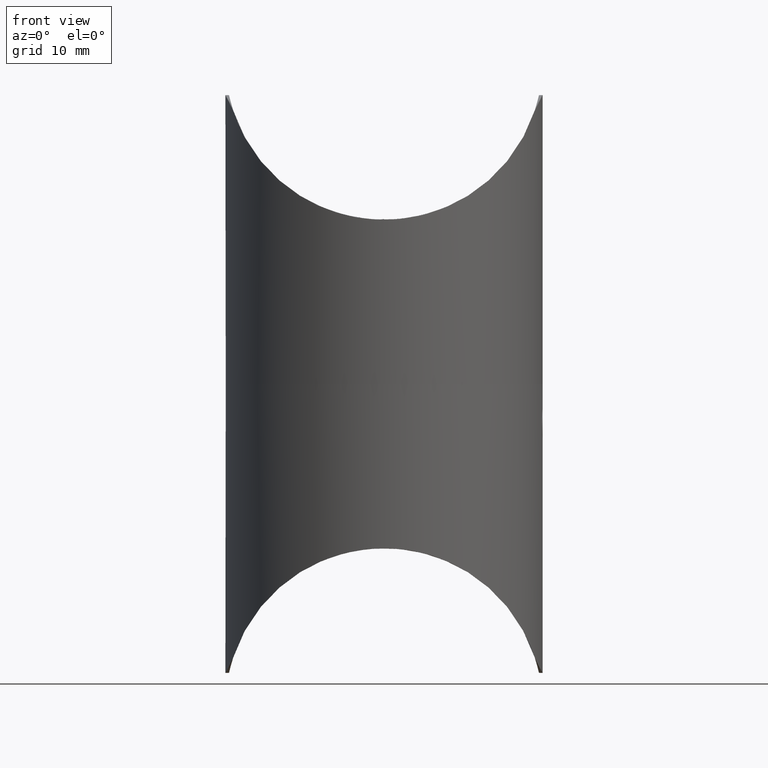
[diagram: clean part render]
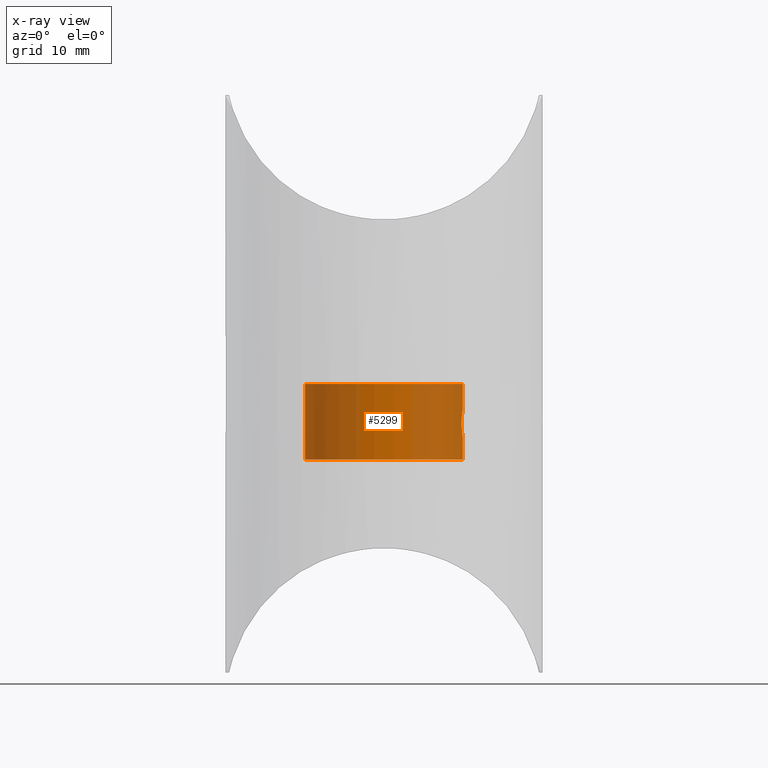
[diagram: x-ray — body ghosted, one internal face saturated and labeled with its STEP entity id]
A machine part, front view, then the same camera in x-ray: the body is ghosted and one INTERNAL B-rep face — a face not visible from any outside direction — is saturated and labeled: STEP entity #5299.
In plain terms, the highlighted cylindrical surface (bore or boss wall) has radius 12 mm, axis along (0, 0, 1).
Its self-contained STEP definition (entity closure, byte-faithful):
#18 = CARTESIAN_POINT ( 'NONE',  ( 11.85938010180749380, 1.834771168086873683, 4.942461510080907949 ) ) ;
#67 = CARTESIAN_POINT ( 'NONE',  ( 11.95583868080447587, -1.059235442716481179, 4.166198353229381368 ) ) ;
#118 = CARTESIAN_POINT ( 'NONE',  ( 11.82504449829075632, 2.044408044357564069, 5.447579286169230706 ) ) ;
#644 = FACE_BOUND ( 'NONE', #2125, .T. ) ;
#1020 = CARTESIAN_POINT ( 'NONE',  ( 11.98828488230609857, 0.5470151797888748169, 8.032161743065062254 ) ) ;
#1109 = CARTESIAN_POINT ( 'NONE',  ( 11.85098633725269046, -1.886001232725555088, 6.933809241330334494 ) ) ;
#1159 = CARTESIAN_POINT ( 'NONE',  ( 11.99755274049298670, 0.2773594515023529161, 8.086139662524781002 ) ) ;
#1202 = CARTESIAN_POINT ( 'NONE',  ( 11.95409979737489259, 1.054760392010267944, 7.821032775836723516 ) ) ;
#1380 = ORIENTED_EDGE ( 'NONE', *, *, #12576, .T. ) ;
#1444 = EDGE_LOOP ( 'NONE', ( #8877 ) ) ;
#2073 = VERTEX_POINT ( 'NONE', #10928 ) ;
#2112 = CARTESIAN_POINT ( 'NONE',  ( 11.91979888924957720, 1.388480957413880779, 4.418606647993171599 ) ) ;
#2125 = EDGE_LOOP ( 'NONE', ( #1380 ) ) ;
#2163 = CARTESIAN_POINT ( 'NONE',  ( 11.81722603926612081, -2.086600151662308722, 5.726333217600926062 ) ) ;
#2214 = CARTESIAN_POINT ( 'NONE',  ( 11.99004954306559512, -0.5503883424061277729, 8.044983021353937502 ) ) ;
#2261 = CARTESIAN_POINT ( 'NONE',  ( 12.00000000000000355, -0.1390225640938832774, 3.900000000000003908 ) ) ;
#2314 = CARTESIAN_POINT ( 'NONE',  ( 12.00000000000000178, -6.911788849595090767E-16, 3.900000000000002576 ) ) ;
#3001 = CARTESIAN_POINT ( 'NONE',  ( 12.00000000000000000, 0.1390225640938818896, 3.900000000000001688 ) ) ;
#3236 = CARTESIAN_POINT ( 'NONE',  ( 11.82667835274314960, -2.032344071998362534, 6.546192681212250619 ) ) ;
#3278 = CARTESIAN_POINT ( 'NONE',  ( 11.93172128118156827, -1.293009970936235709, 4.322867531882433667 ) ) ;
#3316 = CARTESIAN_POINT ( 'NONE',  ( 0.000000000000000000, 0.000000000000000000, 11.49999999999997868 ) ) ;
#3326 = CARTESIAN_POINT ( 'NONE',  ( 11.83365049448734219, -1.991881971882786928, 6.679269136001765084 ) ) ;
#3381 = CARTESIAN_POINT ( 'NONE',  ( 11.91990506011928197, 1.387644347599304551, 7.582259098887409898 ) ) ;
#3427 = CARTESIAN_POINT ( 'NONE',  ( 11.88363963771688958, 1.678406588973372138, 4.708609844555017965 ) ) ;
#3590 = CARTESIAN_POINT ( 'NONE',  ( 0.000000000000000000, 0.000000000000000000, 0.000000000000000000 ) ) ;
#4169 = VERTEX_POINT ( 'NONE', #6566 ) ;
#4306 = CARTESIAN_POINT ( 'NONE',  ( 11.96442116355707874, 0.9321221279122053893, 4.113181683491672125 ) ) ;
#4348 = CARTESIAN_POINT ( 'NONE',  ( 11.88346114303485557, 1.670101859341211137, 7.280403112519468145 ) ) ;
#4403 = CARTESIAN_POINT ( 'NONE',  ( 11.81726473798053867, 2.086383612213994265, 6.275473674643928135 ) ) ;
#4451 = CARTESIAN_POINT ( 'NONE',  ( 11.99999049797130013, 0.1380107357596326023, 8.099945702689030469 ) ) ;
#4497 = CARTESIAN_POINT ( 'NONE',  ( 11.89586917460357718, -1.580451568311319166, 7.389571388286498177 ) ) ;
#4583 = EDGE_CURVE ( 'NONE', #8304, #8304, #5818, .T. ) ;
#5186 = AXIS2_PLACEMENT_3D ( 'NONE', #3590, #13436, #6874 ) ;
#5299 = ADVANCED_FACE ( 'NONE', ( #644, #8922, #10108 ), #9605, .F. ) ;
#5302 = AXIS2_PLACEMENT_3D ( 'NONE', #5568, #13238, #6676 ) ;
#5515 = CARTESIAN_POINT ( 'NONE',  ( 11.93187980565470241, 1.281899275903433111, 7.668955991529891492 ) ) ;
#5552 = CARTESIAN_POINT ( 'NONE',  ( 11.93197218499959789, -1.281120951505778205, 7.669636394085021180 ) ) ;
#5568 = CARTESIAN_POINT ( 'NONE',  ( 0.000000000000000000, 0.000000000000000000, 11.49999999999997868 ) ) ;
#5608 = CARTESIAN_POINT ( 'NONE',  ( 11.99758543647637765, -0.2763240157166890199, 3.913670562736315972 ) ) ;
#5653 = CARTESIAN_POINT ( 'NONE',  ( 11.88360518176614811, -1.669086411898565103, 7.281751924229743267 ) ) ;
#5818 = CIRCLE ( 'NONE', #5186, 12.00000000000000178 ) ;
#5835 = EDGE_LOOP ( 'NONE', ( #9042 ) ) ;
#6421 = CARTESIAN_POINT ( 'NONE',  ( 11.99758661110946711, 0.2756691184617626744, 3.913668504053622321 ) ) ;
#6566 = CARTESIAN_POINT ( 'NONE',  ( 12.00000000000000178, -7.347880794884120722E-16, 3.900000000000002576 ) ) ;
#6608 = CARTESIAN_POINT ( 'NONE',  ( 11.96460655519219962, -0.9296471495185132383, 7.887982229435097636 ) ) ;
#6663 = CARTESIAN_POINT ( 'NONE',  ( 11.89558327999342779, -1.582580269031047537, 4.612880063868924907 ) ) ;
#6676 = DIRECTION ( 'NONE',  ( -1.000000000000000000, 0.000000000000000000, 0.000000000000000000 ) ) ;
#6711 = CARTESIAN_POINT ( 'NONE',  ( 11.81484956178276668, 2.099840436459506243, 5.724290231699679765 ) ) ;
#6874 = DIRECTION ( 'NONE',  ( -1.000000000000000000, 0.000000000000000000, 0.000000000000000000 ) ) ;
#7298 = CIRCLE ( 'NONE', #5302, 12.00000000000000178 ) ;
#7561 = CARTESIAN_POINT ( 'NONE',  ( 12.00000000000000178, -6.911788849595090767E-16, 3.900000000000002576 ) ) ;
#7604 = CARTESIAN_POINT ( 'NONE',  ( 11.85071665137476593, -1.887684512886479427, 5.069660372659860137 ) ) ;
#7708 = CARTESIAN_POINT ( 'NONE',  ( 11.86122223683398680, -1.821353511792390023, 7.054233764746984825 ) ) ;
#7752 = CARTESIAN_POINT ( 'NONE',  ( 11.98136072408851582, -0.6804482128722008083, 4.008595400150841037 ) ) ;
#7804 = CARTESIAN_POINT ( 'NONE',  ( 11.86112961740384897, 1.821947627606114839, 7.053175765665433694 ) ) ;
#8304 = VERTEX_POINT ( 'NONE', #12175 ) ;
#8510 = CARTESIAN_POINT ( 'NONE',  ( 11.93201236731082204, 1.280706470412639186, 4.330089670438455940 ) ) ;
#8571 = EDGE_CURVE ( 'NONE', #2073, #2073, #7298, .T. ) ;
#8794 = CARTESIAN_POINT ( 'NONE',  ( 11.81484057874540028, -2.099890975967358742, 6.140380114349063945 ) ) ;
#8832 = CARTESIAN_POINT ( 'NONE',  ( 11.98151228912667499, 0.6779080366305344496, 7.992320321767040880 ) ) ;
#8877 = ORIENTED_EDGE ( 'NONE', *, *, #4583, .T. ) ;
#8884 = CARTESIAN_POINT ( 'NONE',  ( 11.98826971918961171, -0.5475403247006493945, 3.967925917865812835 ) ) ;
#8922 = FACE_OUTER_BOUND ( 'NONE', #5835, .T. ) ;
#8975 = DIRECTION ( 'NONE',  ( 0.000000000000000000, 0.000000000000000000, -1.000000000000000000 ) ) ;
#9042 = ORIENTED_EDGE ( 'NONE', *, *, #8571, .F. ) ;
#9300 = B_SPLINE_CURVE_WITH_KNOTS ( 'NONE', 3,
 ( #7561, #3001, #6421, #10871, #14094, #4306, #14186, #8510, #2112, #3427, #18, #118, #6711, #13177, #4403, #12119, #12062, #10920, #7804, #4348, #13265, #3381, #5515, #1202, #9878, #8832, #1020, #1159, #4451, #10968, #2214, #6608, #11058, #5552, #9929, #4497, #5653, #7708, #1109, #3326, #3236, #11011, #8794, #13324, #2163, #9830, #12166, #7604, #12018, #13223, #6663, #3278, #67, #7752, #8884, #5608, #2261, #2314 ),
 .UNSPECIFIED., .T., .F.,
 ( 4, 2, 2, 2, 2, 2, 2, 2, 2, 2, 2, 2, 2, 2, 2, 2, 2, 2, 2, 2, 2, 2, 2, 2, 2, 2, 2, 2, 4 ),
 ( 0.000000000000000000, 0.0004110877741431817720, 0.0008221755482863635439, 0.001233263322429544936, 0.001644351096572726437, 0.002466526644859088572, 0.003288702193145450706, 0.003699789967288633075, 0.004110877741431815009, 0.004521965515574998679, 0.004933053289718180613, 0.005344141063861363415, 0.005755228838004543615, 0.006166316612147725550, 0.006577404386290905750, 0.007399579934577268751, 0.007810667708720450686, 0.008221755482863631753, 0.008632843257006814555, 0.009043931031149997357, 0.009455018805293178424, 0.009866106579436359492, 0.01027719435357954229, 0.01068828212772272336, 0.01109936990186590443, 0.01151045767600908723, 0.01233263322429544936, 0.01274372099843863043, 0.01315480877258181150 ),
 .UNSPECIFIED. ) ;
#9605 = CYLINDRICAL_SURFACE ( 'NONE', #10068, 12.00000000000000178 ) ;
#9830 = CARTESIAN_POINT ( 'NONE',  ( 11.82651144408109545, -2.033312204027048153, 5.457381181988221641 ) ) ;
#9878 = CARTESIAN_POINT ( 'NONE',  ( 11.96444018425253120, 0.9318621776127347101, 7.886937320789703776 ) ) ;
#9929 = CARTESIAN_POINT ( 'NONE',  ( 11.92000811184873044, -1.386700109079761711, 7.582971449647893714 ) ) ;
#10068 = AXIS2_PLACEMENT_3D ( 'NONE', #3316, #8975, #12108 ) ;
#10108 = FACE_OUTER_BOUND ( 'NONE', #1444, .T. ) ;
#10871 = CARTESIAN_POINT ( 'NONE',  ( 11.98839789607710493, 0.5444206455312672333, 3.967174691575624301 ) ) ;
#10920 = CARTESIAN_POINT ( 'NONE',  ( 11.85073445340301035, 1.887576422289822364, 6.930609710695868841 ) ) ;
#10928 = CARTESIAN_POINT ( 'NONE',  ( -12.00000000000000178, 0.000000000000000000, 11.49999999999997868 ) ) ;
#10968 = CARTESIAN_POINT ( 'NONE',  ( 12.00001891821713151, -0.2735354104619597826, 8.100108104106022111 ) ) ;
#11011 = CARTESIAN_POINT ( 'NONE',  ( 11.81732158297307755, -2.086061813760281325, 6.277659829950041015 ) ) ;
#11058 = CARTESIAN_POINT ( 'NONE',  ( 11.95433794049143472, -1.052157554987843913, 7.822613799004682456 ) ) ;
#12018 = CARTESIAN_POINT ( 'NONE',  ( 11.86092440456027930, -1.823295257947106673, 4.949067841735971029 ) ) ;
#12062 = CARTESIAN_POINT ( 'NONE',  ( 11.83346516143669369, 1.992976193566194709, 6.676036297475440584 ) ) ;
#12108 = DIRECTION ( 'NONE',  ( -1.000000000000000000, 0.000000000000000000, 0.000000000000000000 ) ) ;
#12119 = CARTESIAN_POINT ( 'NONE',  ( 11.82661786571889451, 2.032695826505255710, 6.545004586811022484 ) ) ;
#12166 = CARTESIAN_POINT ( 'NONE',  ( 11.83348956523700757, -1.992827810120421317, 5.323596302788414114 ) ) ;
#12175 = CARTESIAN_POINT ( 'NONE',  ( -12.00000000000000178, 0.000000000000000000, 0.000000000000000000 ) ) ;
#12576 = EDGE_CURVE ( 'NONE', #4169, #4169, #9300, .T. ) ;
#13177 = CARTESIAN_POINT ( 'NONE',  ( 11.81480711405181161, 2.100079251906457056, 6.136027825990322704 ) ) ;
#13223 = CARTESIAN_POINT ( 'NONE',  ( 11.88335354840744174, -1.670880537889620321, 4.720538305759959918 ) ) ;
#13238 = DIRECTION ( 'NONE',  ( 0.000000000000000000, 0.000000000000000000, -1.000000000000000000 ) ) ;
#13265 = CARTESIAN_POINT ( 'NONE',  ( 11.89553171067913517, 1.583040996913483323, 7.386752282683345605 ) ) ;
#13324 = CARTESIAN_POINT ( 'NONE',  ( 11.81480205006285544, -2.100107742461963412, 5.862900920845088848 ) ) ;
#13436 = DIRECTION ( 'NONE',  ( 0.000000000000000000, 0.000000000000000000, -1.000000000000000000 ) ) ;
#14094 = CARTESIAN_POINT ( 'NONE',  ( 11.98151183172213763, 0.6779378043882483551, 4.007680910537637864 ) ) ;
#14186 = CARTESIAN_POINT ( 'NONE',  ( 11.95429157110415552, 1.052635373737397462, 4.177702455116103941 ) ) ;